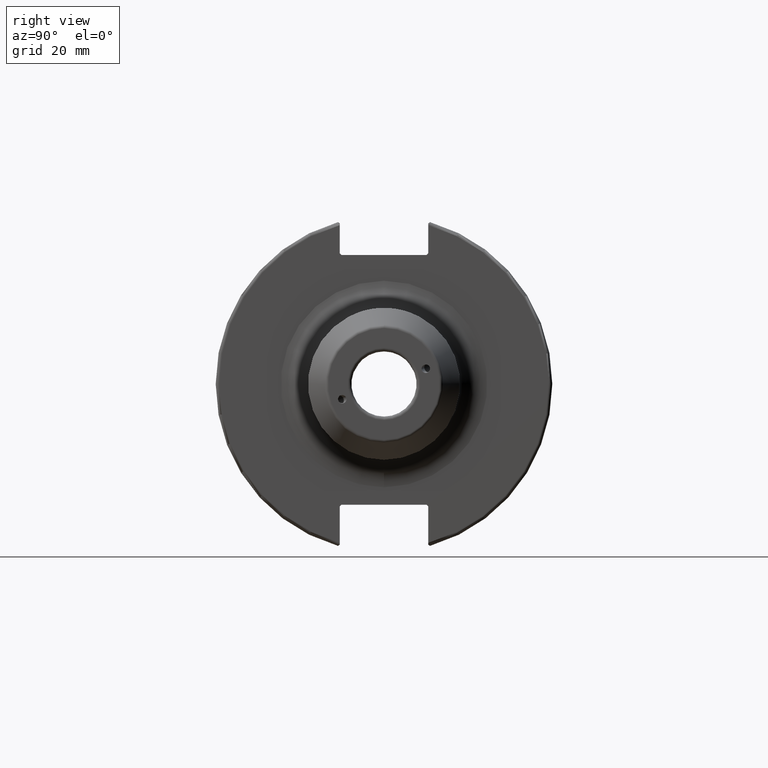
[diagram: clean part render]
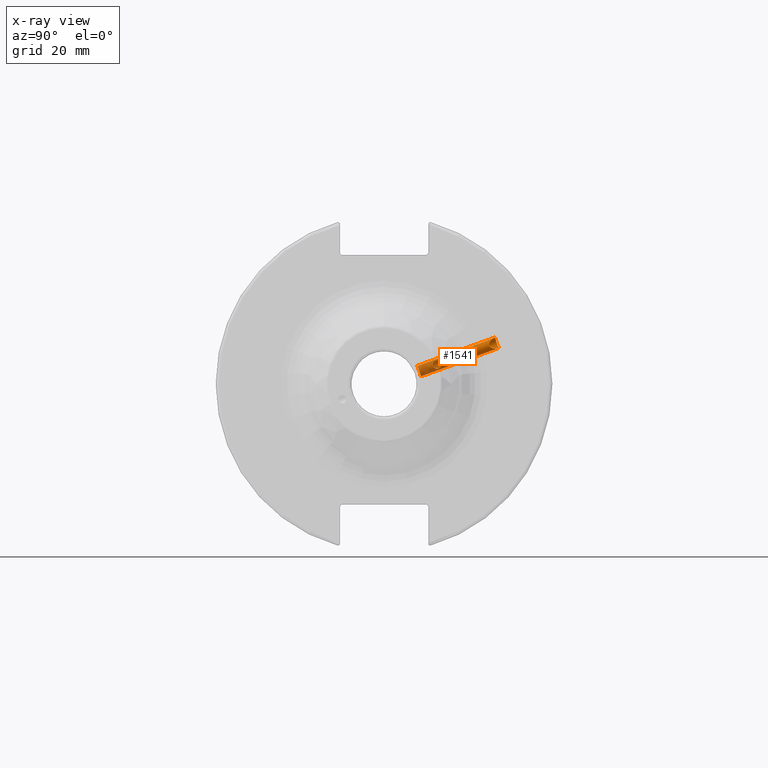
[diagram: x-ray — body ghosted, one internal face saturated and labeled with its STEP entity id]
A machine part, right view, then the same camera in x-ray: the body is ghosted and one INTERNAL B-rep face — a face not visible from any outside direction — is saturated and labeled: STEP entity #1541.
In plain terms, the highlighted cylindrical surface (bore or boss wall) has radius 1.621 mm, axis along (-0, 0.9397, 0.342).
Its self-contained STEP definition (entity closure, byte-faithful):
#67=FACE_BOUND('',#317,.T.);
#217=FACE_OUTER_BOUND('',#316,.T.);
#316=EDGE_LOOP('',(#1178,#1179,#1180,#1181,#1182,#1183));
#317=EDGE_LOOP('',(#1184,#1185));
#387=B_SPLINE_CURVE_WITH_KNOTS('',3,(#2271,#2272,#2273,#2274,#2275,#2276,
#2277,#2278,#2279,#2280,#2281,#2282,#2283,#2284,#2285,#2286,#2287,#2288,
#2289,#2290,#2291,#2292,#2293,#2294,#2295,#2296,#2297,#2298,#2299,#2300,
#2301,#2302),.UNSPECIFIED.,.F.,.F.,(4,2,2,2,2,2,2,2,2,2,2,2,2,2,2,4),(0.,
0.0255039520598772,0.0510079041197545,0.102015808239509,0.150602106504447,
0.199188404769385,0.247774703034323,0.296361001299261,0.347368905419016,
0.372872857478893,0.39837680953877,0.42285334788689,0.44732988623501,0.49628296293125,
0.544422975379921,0.550638059455076),.UNSPECIFIED.);
#388=B_SPLINE_CURVE_WITH_KNOTS('',3,(#2303,#2304,#2305,#2306,#2307,#2308,
#2309,#2310,#2311,#2312,#2313,#2314,#2315,#2316),.UNSPECIFIED.,.F.,.F.,
(4,2,2,2,2,2,4),(0.550638059455076,0.592562987828593,0.640703000277264,
0.688843012725936,0.737796089422175,0.762272627770295,0.786749166118415),
 .UNSPECIFIED.);
#396=B_SPLINE_CURVE_WITH_KNOTS('',3,(#2538,#2539,#2540,#2541,#2542,#2543,
#2544,#2545,#2546,#2547,#2548,#2549,#2550,#2551,#2552,#2553,#2554,#2555,
#2556,#2557,#2558,#2559,#2560,#2561,#2562,#2563),.UNSPECIFIED.,.F.,.F.,
(4,2,2,2,2,2,2,2,2,2,2,2,4),(0.,0.0611574273332741,0.122314854666548,0.183471284102352,
0.244627713538157,0.305784142973961,0.366940572409765,0.428097999743039,
0.489255427076313,0.550412854409587,0.611570281742861,0.672726711178665,
0.733883140614469),.UNSPECIFIED.);
#397=B_SPLINE_CURVE_WITH_KNOTS('',3,(#2564,#2565,#2566,#2567,#2568,#2569,
#2570,#2571,#2572,#2573),.UNSPECIFIED.,.F.,.F.,(4,2,2,2,4),(0.733883140614469,
0.795039570050273,0.856195999486077,0.917353426819351,0.978510854152625),
 .UNSPECIFIED.);
#407=B_SPLINE_CURVE_WITH_KNOTS('',3,(#2802,#2803,#2804,#2805,#2806,#2807,
#2808,#2809,#2810,#2811,#2812,#2813,#2814,#2815,#2816,#2817,#2818,#2819,
#2820,#2821,#2822,#2823,#2824,#2825,#2826,#2827,#2828,#2829,#2830,#2831,
#2832,#2833),.UNSPECIFIED.,.F.,.F.,(4,2,2,2,2,2,2,2,2,2,2,2,2,2,2,4),(0.,
0.0884839677067702,0.17696793541354,0.264588928472713,0.29293468020263,
0.321280431932547,0.349626183662464,0.377971935392381,0.465592928451554,
0.554076896158325,0.642560863865095,0.674019283137882,0.705477702410668,
0.76839454095624,0.837532569122269,0.892424435682428),.UNSPECIFIED.);
#408=B_SPLINE_CURVE_WITH_KNOTS('',3,(#2834,#2835,#2836,#2837,#2838,#2839,
#2840,#2841,#2842,#2843,#2844,#2845),.UNSPECIFIED.,.F.,.F.,(4,2,2,2,2,4),
(0.892424435682428,0.947316302242586,1.01645433040861,1.07937116895419,
1.11082958822697,1.14228800749976),.UNSPECIFIED.);
#465=LINE('',#2846,#558);
#558=VECTOR('',#1956,1.621);
#626=VERTEX_POINT('',#2268);
#627=VERTEX_POINT('',#2270);
#665=VERTEX_POINT('',#2536);
#666=VERTEX_POINT('',#2537);
#696=VERTEX_POINT('',#2800);
#697=VERTEX_POINT('',#2801);
#787=EDGE_CURVE('',#627,#626,#387,.T.);
#788=EDGE_CURVE('',#626,#627,#388,.T.);
#838=EDGE_CURVE('',#665,#666,#396,.T.);
#839=EDGE_CURVE('',#666,#665,#397,.T.);
#878=EDGE_CURVE('',#696,#697,#407,.T.);
#879=EDGE_CURVE('',#697,#696,#408,.T.);
#880=EDGE_CURVE('',#697,#666,#465,.T.);
#1178=ORIENTED_EDGE('',*,*,#878,.F.);
#1179=ORIENTED_EDGE('',*,*,#879,.F.);
#1180=ORIENTED_EDGE('',*,*,#880,.T.);
#1181=ORIENTED_EDGE('',*,*,#839,.T.);
#1182=ORIENTED_EDGE('',*,*,#838,.T.);
#1183=ORIENTED_EDGE('',*,*,#880,.F.);
#1184=ORIENTED_EDGE('',*,*,#787,.T.);
#1185=ORIENTED_EDGE('',*,*,#788,.T.);
#1498=CYLINDRICAL_SURFACE('',#1688,1.621);
#1541=ADVANCED_FACE('',(#217,#67),#1498,.F.);
#1688=AXIS2_PLACEMENT_3D('',#2799,#1954,#1955);
#1954=DIRECTION('center_axis',(-1.20908356884163E-16,0.939692620785908,
0.342020143325669));
#1955=DIRECTION('ref_axis',(1.,1.28667985902711E-16,0.));
#1956=DIRECTION('',(1.20908356884163E-16,-0.939692620785908,-0.342020143325669));
#2268=CARTESIAN_POINT('',(12.692748833094,16.7538304014911,5.65135715886318));
#2270=CARTESIAN_POINT('',(12.1833951675391,15.1346346289726,6.81696308269968));
#2271=CARTESIAN_POINT('Ctrl Pts',(12.1833951675391,15.1346346289726,6.81696308269968));
#2272=CARTESIAN_POINT('Ctrl Pts',(12.1833951675391,15.0547483771341,6.78788686490338));
#2273=CARTESIAN_POINT('Ctrl Pts',(12.1938976283038,14.9778186727568,6.75048714075565));
#2274=CARTESIAN_POINT('Ctrl Pts',(12.2314366145455,14.8334758125635,6.66190399778471));
#2275=CARTESIAN_POINT('Ctrl Pts',(12.2583727695156,14.7660493447153,6.61069976643403));
#2276=CARTESIAN_POINT('Ctrl Pts',(12.3519143594276,14.5817642900038,6.44118117912158));
#2277=CARTESIAN_POINT('Ctrl Pts',(12.4304436584499,14.4830077537081,6.30591124169888));
#2278=CARTESIAN_POINT('Ctrl Pts',(12.5636003388199,14.3499198012656,6.03247374663694));
#2279=CARTESIAN_POINT('Ctrl Pts',(12.6293631824323,14.3037857653199,5.87503303470249));
#2280=CARTESIAN_POINT('Ctrl Pts',(12.7218949257079,14.2808313942494,5.54828365967243));
#2281=CARTESIAN_POINT('Ctrl Pts',(12.748,14.3044834042522,5.37875437123746));
#2282=CARTESIAN_POINT('Ctrl Pts',(12.748,14.4152666888938,5.07437979823169));
#2283=CARTESIAN_POINT('Ctrl Pts',(12.7218949257079,14.5061195241475,4.92930960990616));
#2284=CARTESIAN_POINT('Ctrl Pts',(12.6293631824323,14.7337340422935,4.69375985218406));
#2285=CARTESIAN_POINT('Ctrl Pts',(12.5636003388199,14.87027570306,4.60280765637668));
#2286=CARTESIAN_POINT('Ctrl Pts',(12.4304436584499,15.1479892233243,4.47888966957272));
#2287=CARTESIAN_POINT('Ctrl Pts',(12.3519143594276,15.3105909589136,4.43874636359543));
#2288=CARTESIAN_POINT('Ctrl Pts',(12.2583727695156,15.5607259485612,4.42734374159829));
#2289=CARTESIAN_POINT('Ctrl Pts',(12.2314366145455,15.6452910650513,4.43145992280571));
#2290=CARTESIAN_POINT('Ctrl Pts',(12.1938976283038,15.812804257735,4.45638310045775));
#2291=CARTESIAN_POINT('Ctrl Pts',(12.1833951675391,15.895775909572,4.47718271039083));
#2292=CARTESIAN_POINT('Ctrl Pts',(12.1833951675391,16.0523302363042,4.53416382536693));
#2293=CARTESIAN_POINT('Ctrl Pts',(12.1931417231726,16.1264212748477,4.56984257835561));
#2294=CARTESIAN_POINT('Ctrl Pts',(12.2293687281594,16.2645691880739,4.65483921987243));
#2295=CARTESIAN_POINT('Ctrl Pts',(12.2557619365468,16.3286430889115,4.70416659528639));
#2296=CARTESIAN_POINT('Ctrl Pts',(12.3483331463707,16.5015734187072,4.86796509122185));
#2297=CARTESIAN_POINT('Ctrl Pts',(12.4270860870577,16.591182702843,4.99954589942416));
#2298=CARTESIAN_POINT('Ctrl Pts',(12.5620627432356,16.7097526084752,5.26874411508996));
#2299=CARTESIAN_POINT('Ctrl Pts',(12.629052783808,16.7478881563815,5.42572048390041));
#2300=CARTESIAN_POINT('Ctrl Pts',(12.6817025827379,16.7540047215119,5.6091823602997));
#2301=CARTESIAN_POINT('Ctrl Pts',(12.687400773541,16.754181820929,5.63024832411287));
#2302=CARTESIAN_POINT('Ctrl Pts',(12.6927488330941,16.7538304014911,5.65135715886578));
#2303=CARTESIAN_POINT('Ctrl Pts',(12.6927488330941,16.7538304014911,5.65135715886578));
#2304=CARTESIAN_POINT('Ctrl Pts',(12.7288250970656,16.7514598406773,5.79375046752625));
#2305=CARTESIAN_POINT('Ctrl Pts',(12.748,16.7240189384974,5.93832650129149));
#2306=CARTESIAN_POINT('Ctrl Pts',(12.748,16.621338858602,6.22043770223193));
#2307=CARTESIAN_POINT('Ctrl Pts',(12.7223121886476,16.5343981231795,6.36701557208314));
#2308=CARTESIAN_POINT('Ctrl Pts',(12.629052783808,16.3172125568478,6.60899196872924));
#2309=CARTESIAN_POINT('Ctrl Pts',(12.5620627432356,16.187096567404,6.70472978607474));
#2310=CARTESIAN_POINT('Ctrl Pts',(12.4270860870577,15.9232294724936,6.83473231706097));
#2311=CARTESIAN_POINT('Ctrl Pts',(12.3483331463707,15.7700062651445,6.87792932645009));
#2312=CARTESIAN_POINT('Ctrl Pts',(12.2557619365468,15.5322463032852,6.89224878072099));
#2313=CARTESIAN_POINT('Ctrl Pts',(12.2293687281594,15.4514558218651,6.88884983298784));
#2314=CARTESIAN_POINT('Ctrl Pts',(12.1931417231726,15.2909935925777,6.86516127097968));
#2315=CARTESIAN_POINT('Ctrl Pts',(12.1833951675391,15.2113027038663,6.84486797987948));
#2316=CARTESIAN_POINT('Ctrl Pts',(12.1833951675391,15.1346346289726,6.81696308269968));
#2536=CARTESIAN_POINT('',(11.127,10.7644060814244,2.19289123400911));
#2537=CARTESIAN_POINT('',(9.50600000000001,10.3229932856436,3.75726228450413));
#2538=CARTESIAN_POINT('Ctrl Pts',(11.127,10.7644060814244,2.19289123400911));
#2539=CARTESIAN_POINT('Ctrl Pts',(11.3308580911109,10.7644060814244,2.19289123400911));
#2540=CARTESIAN_POINT('Ctrl Pts',(11.5480976425658,10.7563992112981,2.23339769026782));
#2541=CARTESIAN_POINT('Ctrl Pts',(11.9473884896352,10.7211890589831,2.39672575217716));
#2542=CARTESIAN_POINT('Ctrl Pts',(12.1294656702174,10.6936730645534,2.51941648519806));
#2543=CARTESIAN_POINT('Ctrl Pts',(12.416972168768,10.6236838882786,2.79990053351312));
#2544=CARTESIAN_POINT('Ctrl Pts',(12.5416766094346,10.5764720644486,2.97648040123253));
#2545=CARTESIAN_POINT('Ctrl Pts',(12.7071987049788,10.4611409987277,3.35942344936975));
#2546=CARTESIAN_POINT('Ctrl Pts',(12.748,10.3927157215133,3.56570146632267));
#2547=CARTESIAN_POINT('Ctrl Pts',(12.748,10.2532708497739,3.9488231026856));
#2548=CARTESIAN_POINT('Ctrl Pts',(12.7071987049788,10.1730946997047,4.15082415169272));
#2549=CARTESIAN_POINT('Ctrl Pts',(12.5416766094346,10.015292375161,4.51830892580662));
#2550=CARTESIAN_POINT('Ctrl Pts',(12.416972168768,9.93795537936544,4.68392412762843));
#2551=CARTESIAN_POINT('Ctrl Pts',(12.1294656702174,9.81127852795753,4.94377554954528));
#2552=CARTESIAN_POINT('Ctrl Pts',(11.9473884896352,9.75349291957811,5.05544904408574));
#2553=CARTESIAN_POINT('Ctrl Pts',(11.5480976425658,9.67548020659099,5.20319824796008));
#2554=CARTESIAN_POINT('Ctrl Pts',(11.3308580911109,9.65557677676255,5.23937471059702));
#2555=CARTESIAN_POINT('Ctrl Pts',(10.9231419088891,9.65557677676255,5.23937471059702));
#2556=CARTESIAN_POINT('Ctrl Pts',(10.7059023574342,9.67548020659099,5.20319824796008));
#2557=CARTESIAN_POINT('Ctrl Pts',(10.3066115103648,9.75349291957811,5.05544904408574));
#2558=CARTESIAN_POINT('Ctrl Pts',(10.1245343297826,9.81127852795753,4.94377554954527));
#2559=CARTESIAN_POINT('Ctrl Pts',(9.83702783123207,9.93795537936544,4.68392412762843));
#2560=CARTESIAN_POINT('Ctrl Pts',(9.71232339056538,10.015292375161,4.51830892580662));
#2561=CARTESIAN_POINT('Ctrl Pts',(9.54680129502121,10.1730946997047,4.15082415169272));
#2562=CARTESIAN_POINT('Ctrl Pts',(9.50600000000001,10.2532708497739,3.9488231026856));
#2563=CARTESIAN_POINT('Ctrl Pts',(9.50600000000001,10.3229932856436,3.75726228450413));
#2564=CARTESIAN_POINT('Ctrl Pts',(9.50600000000001,10.3229932856436,3.75726228450413));
#2565=CARTESIAN_POINT('Ctrl Pts',(9.50600000000001,10.3927157215133,3.56570146632267));
#2566=CARTESIAN_POINT('Ctrl Pts',(9.54680129502121,10.4611409987277,3.35942344936976));
#2567=CARTESIAN_POINT('Ctrl Pts',(9.71232339056538,10.5764720644486,2.97648040123254));
#2568=CARTESIAN_POINT('Ctrl Pts',(9.83702783123206,10.6236838882786,2.79990053351313));
#2569=CARTESIAN_POINT('Ctrl Pts',(10.1245343297826,10.6936730645534,2.51941648519806));
#2570=CARTESIAN_POINT('Ctrl Pts',(10.3066115103648,10.7211890589831,2.39672575217717));
#2571=CARTESIAN_POINT('Ctrl Pts',(10.7059023574342,10.7563992112981,2.23339769026782));
#2572=CARTESIAN_POINT('Ctrl Pts',(10.9231419088891,10.7644060814244,2.19289123400911));
#2573=CARTESIAN_POINT('Ctrl Pts',(11.127,10.7644060814244,2.19289123400911));
#2799=CARTESIAN_POINT('Origin',(11.127,21.5598376450015,7.84713915839248));
#2800=CARTESIAN_POINT('',(11.127,33.3180066739614,10.4017305252212));
#2801=CARTESIAN_POINT('',(9.506,32.9302546125277,11.9856324857674));
#2802=CARTESIAN_POINT('Ctrl Pts',(11.127,33.3180066739614,10.4017305252212));
#2803=CARTESIAN_POINT('Ctrl Pts',(11.3686060767793,33.1590347421905,10.3438694739727));
#2804=CARTESIAN_POINT('Ctrl Pts',(11.5793820284691,32.9265222260495,10.3130739191917));
#2805=CARTESIAN_POINT('Ctrl Pts',(11.9610018879898,32.4227535856658,10.3052665038932));
#2806=CARTESIAN_POINT('Ctrl Pts',(12.1308400889368,32.1507028147897,10.3305992558997));
#2807=CARTESIAN_POINT('Ctrl Pts',(12.4142114787667,31.6507121188742,10.450175059589));
#2808=CARTESIAN_POINT('Ctrl Pts',(12.5624213105869,31.3550631351684,10.5662118597017));
#2809=CARTESIAN_POINT('Ctrl Pts',(12.6780350131118,31.0691918693162,10.7993137473042));
#2810=CARTESIAN_POINT('Ctrl Pts',(12.7040094113745,30.9979746661842,10.8699279351394));
#2811=CARTESIAN_POINT('Ctrl Pts',(12.7390906022264,30.8779301513201,11.0303555632259));
#2812=CARTESIAN_POINT('Ctrl Pts',(12.748,30.8293999774207,11.1204342022846));
#2813=CARTESIAN_POINT('Ctrl Pts',(12.748,30.7647678569584,11.2980094938262));
#2814=CARTESIAN_POINT('Ctrl Pts',(12.7390906022264,30.7440426939133,11.3982083291993));
#2815=CARTESIAN_POINT('Ctrl Pts',(12.7040094113745,30.7328812358665,11.5982661489831));
#2816=CARTESIAN_POINT('Ctrl Pts',(12.6780350131118,30.7420468535717,11.6981372909494));
#2817=CARTESIAN_POINT('Ctrl Pts',(12.5624213105869,30.8112019430797,12.0604582042831));
#2818=CARTESIAN_POINT('Ctrl Pts',(12.4142114787667,30.9630951867812,12.3393870537492));
#2819=CARTESIAN_POINT('Ctrl Pts',(12.1308400889368,31.2692484359686,12.7523752579899));
#2820=CARTESIAN_POINT('Ctrl Pts',(11.9610018879898,31.4613678381355,12.9466521366183));
#2821=CARTESIAN_POINT('Ctrl Pts',(11.5793820284691,31.8522955155365,13.264487549701));
#2822=CARTESIAN_POINT('Ctrl Pts',(11.3686060767793,32.0502054375286,13.3903529505607));
#2823=CARTESIAN_POINT('Ctrl Pts',(11.0411025718087,32.2656961467896,13.4687851544926));
#2824=CARTESIAN_POINT('Ctrl Pts',(10.9475197272613,32.319337112024,13.4809373024586));
#2825=CARTESIAN_POINT('Ctrl Pts',(10.7524056152646,32.4120347916018,13.478660481775));
#2826=CARTESIAN_POINT('Ctrl Pts',(10.6508468329885,32.4510290142907,13.4640493136015));
#2827=CARTESIAN_POINT('Ctrl Pts',(10.3515687330207,32.5462208483495,13.3776426663642));
#2828=CARTESIAN_POINT('Ctrl Pts',(10.1588386735598,32.5827431071443,13.2604924449868));
#2829=CARTESIAN_POINT('Ctrl Pts',(9.84134561894807,32.655830196381,12.9644900573906));
#2830=CARTESIAN_POINT('Ctrl Pts',(9.69002806088231,32.7033162128217,12.737930692361));
#2831=CARTESIAN_POINT('Ctrl Pts',(9.54526126545399,32.8036762615874,12.3639022622834));
#2832=CARTESIAN_POINT('Ctrl Pts',(9.506,32.8676741989667,12.1575707589266));
#2833=CARTESIAN_POINT('Ctrl Pts',(9.506,32.9302546125277,11.9856324857674));
#2834=CARTESIAN_POINT('Ctrl Pts',(9.506,32.9302546125277,11.9856324857674));
#2835=CARTESIAN_POINT('Ctrl Pts',(9.506,32.9928350260888,11.8136942126083));
#2836=CARTESIAN_POINT('Ctrl Pts',(9.54526126545399,33.0764370956341,11.6144980298285));
#2837=CARTESIAN_POINT('Ctrl Pts',(9.69002806088231,33.2399776784904,11.2634654335448));
#2838=CARTESIAN_POINT('Ctrl Pts',(9.84134561894807,33.3492308321696,11.0593874679259));
#2839=CARTESIAN_POINT('Ctrl Pts',(10.1588386735598,33.4835095407806,10.7856570083685));
#2840=CARTESIAN_POINT('Ctrl Pts',(10.3515687330207,33.5308345781541,10.6724386768412));
#2841=CARTESIAN_POINT('Ctrl Pts',(10.6508468329885,33.5134545248817,10.5450592134001));
#2842=CARTESIAN_POINT('Ctrl Pts',(10.7524056152646,33.4929750951421,10.5088014060196));
#2843=CARTESIAN_POINT('Ctrl Pts',(10.9475197272613,33.4234280649364,10.4474723403076));
#2844=CARTESIAN_POINT('Ctrl Pts',(11.0411025718087,33.3745254514514,10.4223016779046));
#2845=CARTESIAN_POINT('Ctrl Pts',(11.127,33.3180066739614,10.4017305252212));
#2846=CARTESIAN_POINT('',(9.506,21.5598376450015,7.84713915839248));